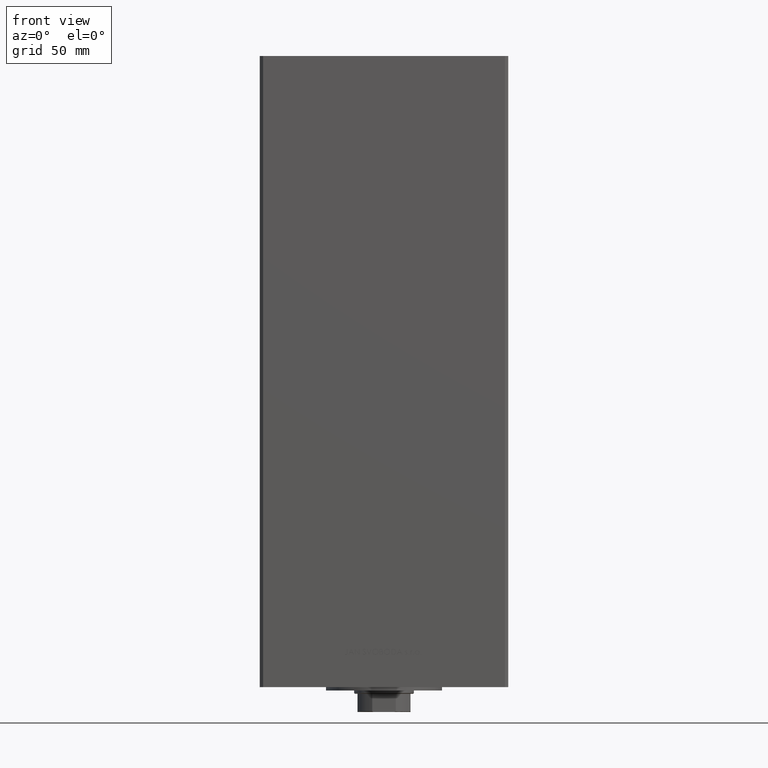
[diagram: clean part render]
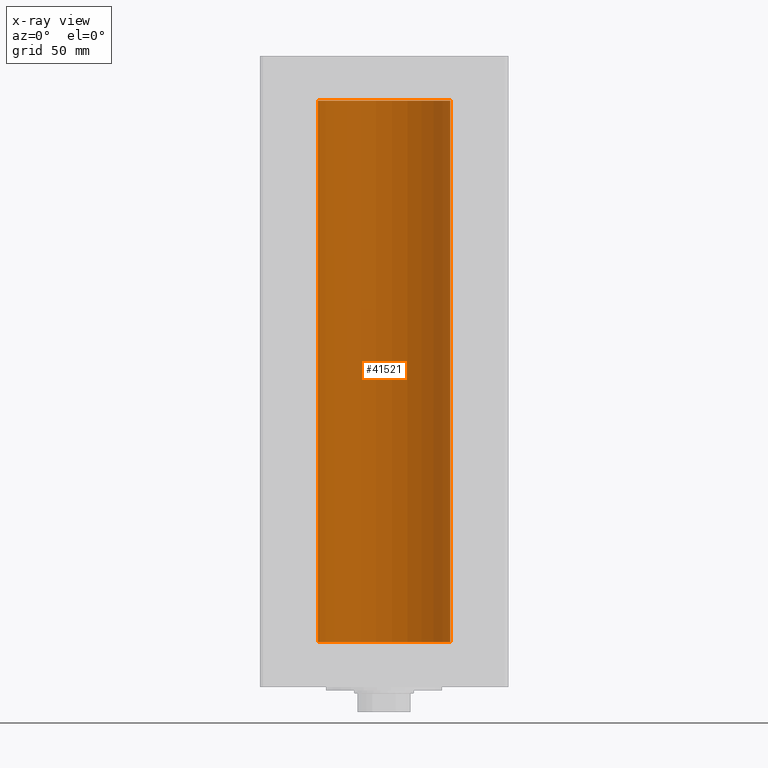
[diagram: x-ray — body ghosted, one internal face saturated and labeled with its STEP entity id]
A machine part, front view, then the same camera in x-ray: the body is ghosted and one INTERNAL B-rep face — a face not visible from any outside direction — is saturated and labeled: STEP entity #41521.
In plain terms, the highlighted cylindrical surface (partial cylindrical patch) has radius 40 mm, axis along (-0, -0, -1).
Its self-contained STEP definition (entity closure, byte-faithful):
#326 = CARTESIAN_POINT ( 'NONE',  ( 40.00000000000000000, 4.898587196589413026E-15, 0.000000000000000000 ) ) ;
#5739 = DIRECTION ( 'NONE',  ( -0.000000000000000000, 0.000000000000000000, 1.000000000000000000 ) ) ;
#7520 = DIRECTION ( 'NONE',  ( -1.000000000000000000, 0.000000000000000000, 0.000000000000000000 ) ) ;
#8008 = CARTESIAN_POINT ( 'NONE',  ( 0.000000000000000000, 0.000000000000000000, 327.0000000000000000 ) ) ;
#8524 = VERTEX_POINT ( 'NONE', #326 ) ;
#13155 = CARTESIAN_POINT ( 'NONE',  ( -40.00000000000000000, 0.000000000000000000, 0.000000000000000000 ) ) ;
#13817 = DIRECTION ( 'NONE',  ( 1.000000000000000000, 0.000000000000000000, 0.000000000000000000 ) ) ;
#15908 = FACE_OUTER_BOUND ( 'NONE', #31031, .T. ) ;
#16151 = LINE ( 'NONE', #31265, #20752 ) ;
#16435 = AXIS2_PLACEMENT_3D ( 'NONE', #8008, #38204, #7520 ) ;
#19280 = CIRCLE ( 'NONE', #46929, 40.00000000000000000 ) ;
#19617 = DIRECTION ( 'NONE',  ( -0.000000000000000000, -0.000000000000000000, -1.000000000000000000 ) ) ;
#19759 = EDGE_CURVE ( 'NONE', #43970, #32985, #16151, .T. ) ;
#20752 = VECTOR ( 'NONE', #19617, 1000.000000000000000 ) ;
#21846 = EDGE_CURVE ( 'NONE', #40332, #43970, #19280, .T. ) ;
#22811 = CIRCLE ( 'NONE', #33881, 40.00000000000000000 ) ;
#23561 = CYLINDRICAL_SURFACE ( 'NONE', #16435, 40.00000000000000000 ) ;
#24155 = ORIENTED_EDGE ( 'NONE', *, *, #48942, .F. ) ;
#28727 = ORIENTED_EDGE ( 'NONE', *, *, #21846, .T. ) ;
#29358 = VECTOR ( 'NONE', #44373, 1000.000000000000000 ) ;
#31031 = EDGE_LOOP ( 'NONE', ( #24155, #28727, #33977, #43383 ) ) ;
#31265 = CARTESIAN_POINT ( 'NONE',  ( -40.00000000000000000, 0.000000000000000000, 327.0000000000000000 ) ) ;
#32985 = VERTEX_POINT ( 'NONE', #13155 ) ;
#33881 = AXIS2_PLACEMENT_3D ( 'NONE', #35701, #5739, #39655 ) ;
#33977 = ORIENTED_EDGE ( 'NONE', *, *, #19759, .T. ) ;
#35701 = CARTESIAN_POINT ( 'NONE',  ( 0.000000000000000000, 0.000000000000000000, 0.000000000000000000 ) ) ;
#37929 = CARTESIAN_POINT ( 'NONE',  ( -40.00000000000000000, 0.000000000000000000, 327.0000000000000000 ) ) ;
#38204 = DIRECTION ( 'NONE',  ( -0.000000000000000000, -0.000000000000000000, -1.000000000000000000 ) ) ;
#39655 = DIRECTION ( 'NONE',  ( 1.000000000000000000, 0.000000000000000000, 0.000000000000000000 ) ) ;
#40332 = VERTEX_POINT ( 'NONE', #40914 ) ;
#40914 = CARTESIAN_POINT ( 'NONE',  ( 40.00000000000000000, 4.898587196589413026E-15, 327.0000000000000000 ) ) ;
#41521 = ADVANCED_FACE ( 'NONE', ( #15908 ), #23561, .F. ) ;
#42390 = EDGE_CURVE ( 'NONE', #8524, #32985, #22811, .T. ) ;
#43383 = ORIENTED_EDGE ( 'NONE', *, *, #42390, .F. ) ;
#43970 = VERTEX_POINT ( 'NONE', #37929 ) ;
#44373 = DIRECTION ( 'NONE',  ( -0.000000000000000000, -0.000000000000000000, -1.000000000000000000 ) ) ;
#46929 = AXIS2_PLACEMENT_3D ( 'NONE', #47221, #46983, #13817 ) ;
#46983 = DIRECTION ( 'NONE',  ( -0.000000000000000000, 0.000000000000000000, 1.000000000000000000 ) ) ;
#47221 = CARTESIAN_POINT ( 'NONE',  ( 0.000000000000000000, 0.000000000000000000, 327.0000000000000000 ) ) ;
#48325 = CARTESIAN_POINT ( 'NONE',  ( 40.00000000000000000, 4.898587196589413026E-15, 327.0000000000000000 ) ) ;
#48572 = LINE ( 'NONE', #48325, #29358 ) ;
#48942 = EDGE_CURVE ( 'NONE', #40332, #8524, #48572, .T. ) ;